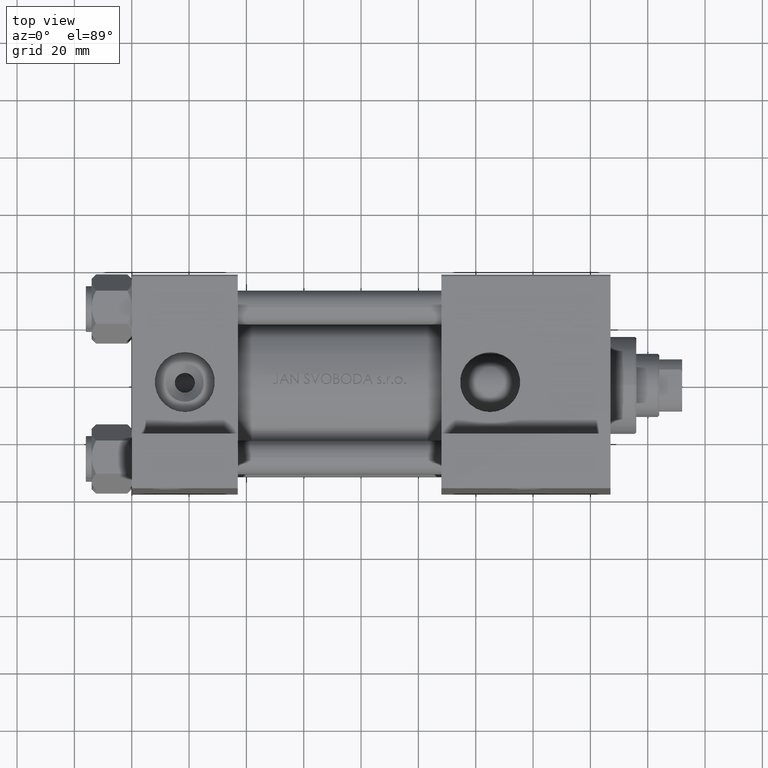
[diagram: clean part render]
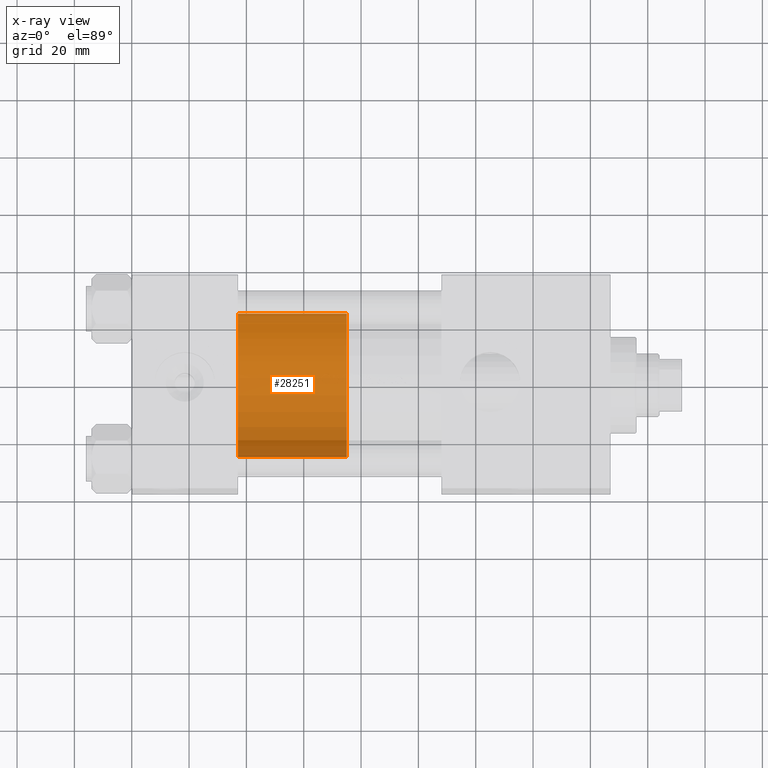
[diagram: x-ray — body ghosted, one internal face saturated and labeled with its STEP entity id]
A machine part, top view, then the same camera in x-ray: the body is ghosted and one INTERNAL B-rep face — a face not visible from any outside direction — is saturated and labeled: STEP entity #28251.
In plain terms, the highlighted cylindrical surface (partial cylindrical patch) has radius 25 mm, axis along (-1, 0, 0).
Its self-contained STEP definition (entity closure, byte-faithful):
#90 = LINE ( 'NONE', #49153, #20400 ) ;
#468 = EDGE_CURVE ( 'NONE', #40713, #7303, #22964, .T. ) ;
#1801 = ORIENTED_EDGE ( 'NONE', *, *, #39014, .T. ) ;
#2419 = CARTESIAN_POINT ( 'NONE',  ( 0.000000000000000000, 0.000000000000000000, 38.00000000000000000 ) ) ;
#5391 = CARTESIAN_POINT ( 'NONE',  ( -25.00000000000000000, 0.000000000000000000, 0.000000000000000000 ) ) ;
#6888 = CARTESIAN_POINT ( 'NONE',  ( 0.000000000000000000, 0.000000000000000000, 0.000000000000000000 ) ) ;
#7303 = VERTEX_POINT ( 'NONE', #5391 ) ;
#10144 = DIRECTION ( 'NONE',  ( 0.000000000000000000, 0.000000000000000000, 1.000000000000000000 ) ) ;
#10389 = DIRECTION ( 'NONE',  ( 0.000000000000000000, 0.000000000000000000, 1.000000000000000000 ) ) ;
#10639 = VECTOR ( 'NONE', #14995, 1000.000000000000000 ) ;
#10890 = VERTEX_POINT ( 'NONE', #42363 ) ;
#13534 = FACE_OUTER_BOUND ( 'NONE', #30397, .T. ) ;
#14799 = DIRECTION ( 'NONE',  ( -0.000000000000000000, -0.000000000000000000, -1.000000000000000000 ) ) ;
#14995 = DIRECTION ( 'NONE',  ( -0.000000000000000000, -0.000000000000000000, -1.000000000000000000 ) ) ;
#16959 = CIRCLE ( 'NONE', #24904, 25.00000000000000000 ) ;
#17518 = DIRECTION ( 'NONE',  ( -0.000000000000000000, -0.000000000000000000, -1.000000000000000000 ) ) ;
#19416 = EDGE_CURVE ( 'NONE', #10890, #40713, #47730, .T. ) ;
#20400 = VECTOR ( 'NONE', #14799, 1000.000000000000000 ) ;
#22964 = LINE ( 'NONE', #44874, #10639 ) ;
#24904 = AXIS2_PLACEMENT_3D ( 'NONE', #6888, #10389, #44002 ) ;
#25353 = DIRECTION ( 'NONE',  ( 1.000000000000000000, 0.000000000000000000, 0.000000000000000000 ) ) ;
#26921 = EDGE_CURVE ( 'NONE', #30110, #7303, #16959, .T. ) ;
#28251 = ADVANCED_FACE ( 'NONE', ( #13534 ), #28732, .T. ) ;
#28732 = CYLINDRICAL_SURFACE ( 'NONE', #40035, 25.00000000000000000 ) ;
#29314 = CARTESIAN_POINT ( 'NONE',  ( -25.00000000000000000, 0.000000000000000000, 38.00000000000000000 ) ) ;
#30110 = VERTEX_POINT ( 'NONE', #41161 ) ;
#30397 = EDGE_LOOP ( 'NONE', ( #47445, #1801, #46914, #39803 ) ) ;
#32702 = DIRECTION ( 'NONE',  ( -1.000000000000000000, 0.000000000000000000, 0.000000000000000000 ) ) ;
#34223 = AXIS2_PLACEMENT_3D ( 'NONE', #2419, #10144, #25353 ) ;
#39014 = EDGE_CURVE ( 'NONE', #10890, #30110, #90, .T. ) ;
#39803 = ORIENTED_EDGE ( 'NONE', *, *, #468, .F. ) ;
#40035 = AXIS2_PLACEMENT_3D ( 'NONE', #43905, #17518, #32702 ) ;
#40713 = VERTEX_POINT ( 'NONE', #29314 ) ;
#41161 = CARTESIAN_POINT ( 'NONE',  ( 25.00000000000000000, 3.061616997868383043E-15, 0.000000000000000000 ) ) ;
#42363 = CARTESIAN_POINT ( 'NONE',  ( 25.00000000000000000, 3.061616997868383043E-15, 38.00000000000000000 ) ) ;
#43905 = CARTESIAN_POINT ( 'NONE',  ( 0.000000000000000000, 0.000000000000000000, 38.00000000000000000 ) ) ;
#44002 = DIRECTION ( 'NONE',  ( 1.000000000000000000, 0.000000000000000000, 0.000000000000000000 ) ) ;
#44874 = CARTESIAN_POINT ( 'NONE',  ( -25.00000000000000000, 0.000000000000000000, 38.00000000000000000 ) ) ;
#46914 = ORIENTED_EDGE ( 'NONE', *, *, #26921, .T. ) ;
#47445 = ORIENTED_EDGE ( 'NONE', *, *, #19416, .F. ) ;
#47730 = CIRCLE ( 'NONE', #34223, 25.00000000000000000 ) ;
#49153 = CARTESIAN_POINT ( 'NONE',  ( 25.00000000000000000, 3.061616997868383043E-15, 38.00000000000000000 ) ) ;